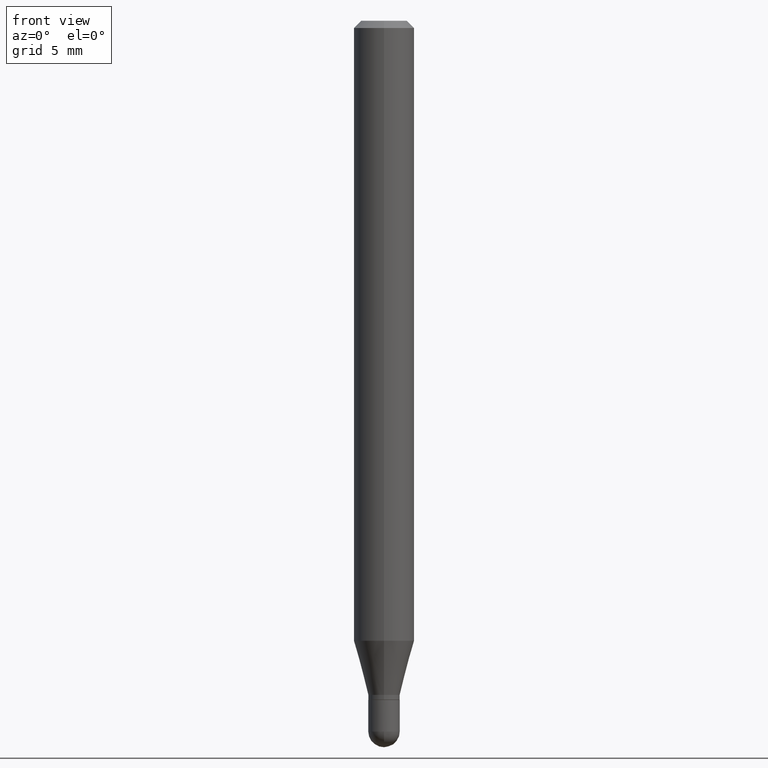
[diagram: clean part render]
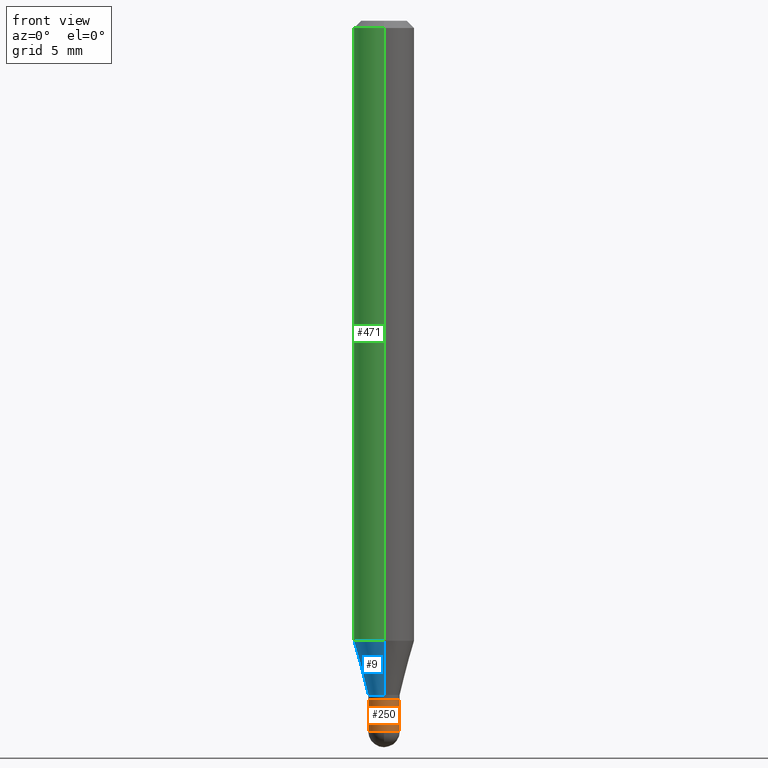
[diagram: same view with three faces highlighted in distinct colors, each labeled with its STEP entity id]
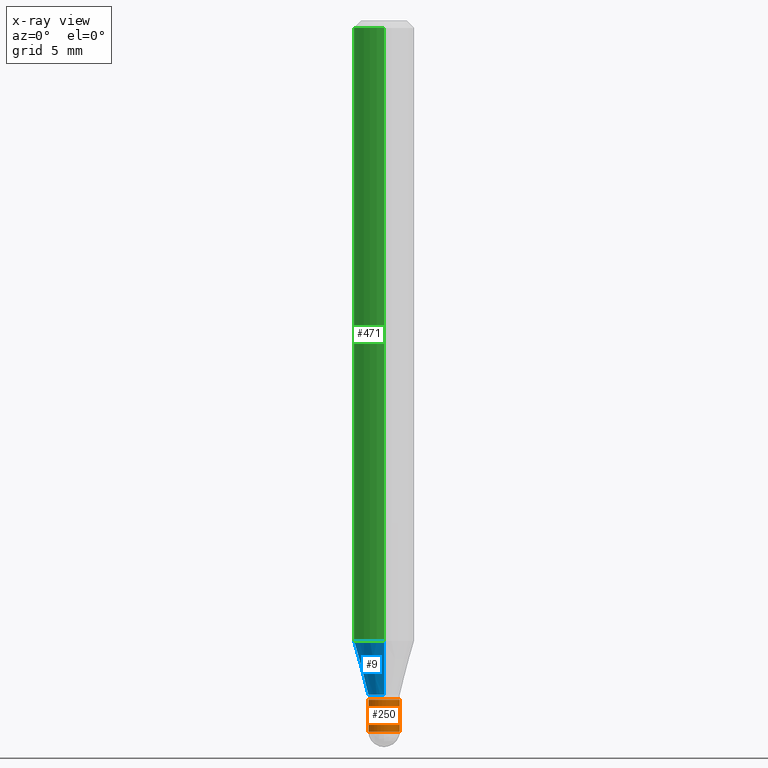
[diagram: x-ray of the same camera — body ghosted, the three highlighted faces saturated]
A machine part, front view with three faces highlighted in distinct colors.
The next image is the same camera in x-ray (body ghosted, the three faces saturated) — at least one of them is partly hidden behind the body in this view.
Their STEP definitions:

[orange] entity #250 — the highlighted cylindrical surface (edge-blend (fillet) strip) has radius 0.8255 mm, axis along (-0, 0, 1).
#28 = CARTESIAN_POINT ( 'NONE',  ( 0.03250000000000000111, -5.122003124082894208E-15, -1.402000000000000135 ) ) ;
#32 = DIRECTION ( 'NONE',  ( -2.445468806185136597E-29, 3.491481338843145583E-15, 1.000000000000000000 ) ) ;
#74 = CYLINDRICAL_SURFACE ( 'NONE', #304, 0.03250000000000000111 ) ;
#75 = AXIS2_PLACEMENT_3D ( 'NONE', #157, #318, #346 ) ;
#80 = ORIENTED_EDGE ( 'NONE', *, *, #228, .F. ) ;
#125 = ORIENTED_EDGE ( 'NONE', *, *, #480, .T. ) ;
#132 = ORIENTED_EDGE ( 'NONE', *, *, #221, .T. ) ;
#146 = CARTESIAN_POINT ( 'NONE',  ( 3.588725473076687933E-29, -5.123748864752316500E-15, -1.467500000000000027 ) ) ;
#157 = CARTESIAN_POINT ( 'NONE',  ( 3.428547266271562329E-29, -4.895056837058090855E-15, -1.402000000000000135 ) ) ;
#160 = ORIENTED_EDGE ( 'NONE', *, *, #301, .F. ) ;
#193 = DIRECTION ( 'NONE',  ( -2.445468806185136597E-29, 3.491481338843145583E-15, 1.000000000000000000 ) ) ;
#202 = CARTESIAN_POINT ( 'NONE',  ( -0.03250000000000000111, -4.778476461783171307E-15, -1.402000000000000135 ) ) ;
#207 = CARTESIAN_POINT ( 'NONE',  ( -0.03250000000000000111, -4.778476461783171307E-15, -1.467500000000000027 ) ) ;
#221 = EDGE_CURVE ( 'NONE', #428, #363, #343, .T. ) ;
#226 = AXIS2_PLACEMENT_3D ( 'NONE', #348, #313, #354 ) ;
#227 = DIRECTION ( 'NONE',  ( -2.445468806185136877E-29, 3.491481338843145188E-15, 1.000000000000000000 ) ) ;
#228 = EDGE_CURVE ( 'NONE', #428, #476, #416, .T. ) ;
#232 = VERTEX_POINT ( 'NONE', #351 ) ;
#245 = VECTOR ( 'NONE', #286, 39.37007874015748143 ) ;
#249 = ORIENTED_EDGE ( 'NONE', *, *, #251, .T. ) ;
#250 = ADVANCED_FACE ( 'NONE', ( #386 ), #74, .T. ) ;
#251 = EDGE_CURVE ( 'NONE', #363, #232, #268, .T. ) ;
#268 = CIRCLE ( 'NONE', #465, 0.03250000000000000111 ) ;
#286 = DIRECTION ( 'NONE',  ( -2.445468806185136877E-29, 3.491481338843145188E-15, 1.000000000000000000 ) ) ;
#289 = VERTEX_POINT ( 'NONE', #28 ) ;
#301 = EDGE_CURVE ( 'NONE', #476, #289, #473, .T. ) ;
#304 = AXIS2_PLACEMENT_3D ( 'NONE', #504, #193, #460 ) ;
#308 = CARTESIAN_POINT ( 'NONE',  ( -2.309263891219966751E-16, -0.03250000000000512895, -1.467500000000000027 ) ) ;
#313 = DIRECTION ( 'NONE',  ( -2.445468806185136597E-29, 3.491481338843145583E-15, 1.000000000000000000 ) ) ;
#316 = VECTOR ( 'NONE', #227, 39.37007874015748143 ) ;
#318 = DIRECTION ( 'NONE',  ( -2.445468806185136597E-29, 3.491481338843145583E-15, 1.000000000000000000 ) ) ;
#343 = CIRCLE ( 'NONE', #226, 0.03250000000000000111 ) ;
#346 = DIRECTION ( 'NONE',  ( 1.000000000000000000, -6.982962677686258033E-15, 0.000000000000000000 ) ) ;
#348 = CARTESIAN_POINT ( 'NONE',  ( 3.588725473076687933E-29, -5.123748864752316500E-15, -1.467500000000000027 ) ) ;
#351 = CARTESIAN_POINT ( 'NONE',  ( 0.03250000000000000111, -5.236349137930007031E-15, -1.467500000000000027 ) ) ;
#354 = DIRECTION ( 'NONE',  ( 1.000000000000000000, -6.982962677686258033E-15, 0.000000000000000000 ) ) ;
#363 = VERTEX_POINT ( 'NONE', #308 ) ;
#386 = FACE_OUTER_BOUND ( 'NONE', #431, .T. ) ;
#397 = CARTESIAN_POINT ( 'NONE',  ( 0.03250000000000000111, -2.269462870248036977E-16, 1.584757452133679343E-30 ) ) ;
#399 = LINE ( 'NONE', #397, #245 ) ;
#416 = LINE ( 'NONE', #503, #316 ) ;
#427 = DIRECTION ( 'NONE',  ( 1.000000000000000000, -6.982962677686258033E-15, 0.000000000000000000 ) ) ;
#428 = VERTEX_POINT ( 'NONE', #207 ) ;
#431 = EDGE_LOOP ( 'NONE', ( #80, #132, #249, #125, #160 ) ) ;
#460 = DIRECTION ( 'NONE',  ( 1.000000000000000000, -6.982962677686267499E-15, 4.876176775795936353E-29 ) ) ;
#465 = AXIS2_PLACEMENT_3D ( 'NONE', #146, #32, #427 ) ;
#473 = CIRCLE ( 'NONE', #75, 0.03250000000000000111 ) ;
#476 = VERTEX_POINT ( 'NONE', #202 ) ;
#480 = EDGE_CURVE ( 'NONE', #232, #289, #399, .T. ) ;
#503 = CARTESIAN_POINT ( 'NONE',  ( -0.03250000000000000111, 2.309263891220325683E-16, -1.598653904332844407E-30 ) ) ;
#504 = CARTESIAN_POINT ( 'NONE',  ( 0.000000000000000000, 0.000000000000000000, 0.000000000000000000 ) ) ;

[blue] entity #9 — the highlighted conical surface has half-angle 15 deg.
#1 = DIRECTION ( 'NONE',  ( -2.445482281465113779E-29, 3.491462041475252887E-15, 1.000000000000000000 ) ) ;
#4 = AXIS2_PLACEMENT_3D ( 'NONE', #311, #274, #387 ) ;
#9 = ADVANCED_FACE ( 'NONE', ( #133 ), #372, .T. ) ;
#30 = ORIENTED_EDGE ( 'NONE', *, *, #453, .T. ) ;
#43 = EDGE_LOOP ( 'NONE', ( #459, #30, #83, #472 ) ) ;
#67 = DIRECTION ( 'NONE',  ( -1.807323732225330139E-15, -0.2588190451025181860, 0.9659258262890689783 ) ) ;
#83 = ORIENTED_EDGE ( 'NONE', *, *, #195, .T. ) ;
#96 = DIRECTION ( 'NONE',  ( -6.982962677686265133E-15, -1.000000000000000000, 0.000000000000000000 ) ) ;
#104 = EDGE_CURVE ( 'NONE', #285, #420, #489, .T. ) ;
#133 = FACE_OUTER_BOUND ( 'NONE', #43, .T. ) ;
#148 = AXIS2_PLACEMENT_3D ( 'NONE', #295, #442, #96 ) ;
#150 = CARTESIAN_POINT ( 'NONE',  ( -4.364351673553605094E-16, -0.06250000000000451028, -1.280038475772934614 ) ) ;
#158 = VECTOR ( 'NONE', #303, 39.37007874015748143 ) ;
#161 = CARTESIAN_POINT ( 'NONE',  ( -2.269462870247710093E-16, -0.03250000000000505956, -1.392000000000000126 ) ) ;
#189 = CARTESIAN_POINT ( 'NONE',  ( -2.269462870247710093E-16, -0.03250000000000505956, -1.392000000000000126 ) ) ;
#195 = EDGE_CURVE ( 'NONE', #418, #273, #421, .T. ) ;
#205 = DIRECTION ( 'NONE',  ( -6.982962677686265133E-15, -1.000000000000000000, 0.000000000000000000 ) ) ;
#217 = VECTOR ( 'NONE', #67, 39.37007874015748143 ) ;
#269 = CARTESIAN_POINT ( 'NONE',  ( 3.375077994860809709E-16, 0.03249999999999533817, -1.392000000000000126 ) ) ;
#273 = VERTEX_POINT ( 'NONE', #150 ) ;
#274 = DIRECTION ( 'NONE',  ( -2.445482281465113779E-29, 3.491462041475252887E-15, 1.000000000000000000 ) ) ;
#285 = VERTEX_POINT ( 'NONE', #269 ) ;
#290 = CARTESIAN_POINT ( 'NONE',  ( 4.440892098500935790E-16, 0.06249999999999548972, -1.280038475772935058 ) ) ;
#295 = CARTESIAN_POINT ( 'NONE',  ( 3.404111335799438775E-29, -4.860115161733551679E-15, -1.392000000000000126 ) ) ;
#296 = CIRCLE ( 'NONE', #474, 0.03250000000000020234 ) ;
#303 = DIRECTION ( 'NONE',  ( 1.839019923739600315E-15, 0.2588190451025249583, 0.9659258262890670910 ) ) ;
#311 = CARTESIAN_POINT ( 'NONE',  ( 3.130311412096322891E-29, -4.469205749789042696E-15, -1.280038475772934836 ) ) ;
#341 = EDGE_CURVE ( 'NONE', #420, #273, #508, .T. ) ;
#372 = CONICAL_SURFACE ( 'NONE', #148, 0.03250000000000020234, 0.2617993877991502960 ) ;
#387 = DIRECTION ( 'NONE',  ( -6.982962677686265922E-15, -1.000000000000000000, 4.370956789862821150E-15 ) ) ;
#408 = CARTESIAN_POINT ( 'NONE',  ( 2.309263891220679684E-16, 0.03249999999999533817, -1.392000000000000126 ) ) ;
#418 = VERTEX_POINT ( 'NONE', #161 ) ;
#420 = VERTEX_POINT ( 'NONE', #290 ) ;
#421 = LINE ( 'NONE', #189, #217 ) ;
#442 = DIRECTION ( 'NONE',  ( -2.445482281465113779E-29, 3.491462041475252887E-15, 1.000000000000000000 ) ) ;
#453 = EDGE_CURVE ( 'NONE', #285, #418, #296, .T. ) ;
#459 = ORIENTED_EDGE ( 'NONE', *, *, #104, .F. ) ;
#470 = CARTESIAN_POINT ( 'NONE',  ( 3.404111335799438775E-29, -4.860115161733551679E-15, -1.392000000000000126 ) ) ;
#472 = ORIENTED_EDGE ( 'NONE', *, *, #341, .F. ) ;
#474 = AXIS2_PLACEMENT_3D ( 'NONE', #470, #1, #205 ) ;
#489 = LINE ( 'NONE', #408, #158 ) ;
#508 = CIRCLE ( 'NONE', #4, 0.06250000000000000000 ) ;

[green] entity #471 — the highlighted cylindrical surface (edge-blend (fillet) strip) has radius 1.5875 mm, axis along (-0, 0, 1).
#4 = AXIS2_PLACEMENT_3D ( 'NONE', #311, #274, #387 ) ;
#11 = ORIENTED_EDGE ( 'NONE', *, *, #197, .F. ) ;
#36 = DIRECTION ( 'NONE',  ( -6.982962677686265922E-15, -1.000000000000000000, 3.483106191921935554E-15 ) ) ;
#40 = DIRECTION ( 'NONE',  ( -2.445482281465113779E-29, 3.491462041475253282E-15, 1.000000000000000000 ) ) ;
#42 = FACE_OUTER_BOUND ( 'NONE', #255, .T. ) ;
#66 = CIRCLE ( 'NONE', #184, 0.06250000000000000000 ) ;
#91 = DIRECTION ( 'NONE',  ( -6.982962677686265922E-15, -1.000000000000000000, 3.491462041475252887E-15 ) ) ;
#111 = DIRECTION ( 'NONE',  ( -2.445482281465113779E-29, 3.491462041475252887E-15, 1.000000000000000000 ) ) ;
#113 = CARTESIAN_POINT ( 'NONE',  ( 4.440892098500940720E-16, 0.06249999999999993755, -0.01500000000000022669 ) ) ;
#116 = VECTOR ( 'NONE', #40, 39.37007874015748143 ) ;
#118 = ORIENTED_EDGE ( 'NONE', *, *, #341, .T. ) ;
#135 = LINE ( 'NONE', #338, #210 ) ;
#150 = CARTESIAN_POINT ( 'NONE',  ( -4.364351673553605094E-16, -0.06250000000000451028, -1.280038475772934614 ) ) ;
#154 = CARTESIAN_POINT ( 'NONE',  ( -4.364351673553912750E-16, -0.06250000000000005551, -0.01499999999999979128 ) ) ;
#155 = EDGE_CURVE ( 'NONE', #273, #389, #135, .T. ) ;
#164 = CARTESIAN_POINT ( 'NONE',  ( 4.440892098500625669E-16, 0.06250000000000000000, -2.182163775922033055E-16 ) ) ;
#184 = AXIS2_PLACEMENT_3D ( 'NONE', #315, #111, #36 ) ;
#197 = EDGE_CURVE ( 'NONE', #239, #389, #66, .T. ) ;
#210 = VECTOR ( 'NONE', #257, 39.37007874015748143 ) ;
#239 = VERTEX_POINT ( 'NONE', #113 ) ;
#255 = EDGE_LOOP ( 'NONE', ( #282, #118, #424, #11 ) ) ;
#257 = DIRECTION ( 'NONE',  ( -2.445482281465113779E-29, 3.491462041475253282E-15, 1.000000000000000000 ) ) ;
#262 = AXIS2_PLACEMENT_3D ( 'NONE', #362, #394, #91 ) ;
#273 = VERTEX_POINT ( 'NONE', #150 ) ;
#274 = DIRECTION ( 'NONE',  ( -2.445482281465113779E-29, 3.491462041475252887E-15, 1.000000000000000000 ) ) ;
#282 = ORIENTED_EDGE ( 'NONE', *, *, #426, .F. ) ;
#290 = CARTESIAN_POINT ( 'NONE',  ( 4.440892098500935790E-16, 0.06249999999999548972, -1.280038475772935058 ) ) ;
#311 = CARTESIAN_POINT ( 'NONE',  ( 3.130311412096322891E-29, -4.469205749789042696E-15, -1.280038475772934836 ) ) ;
#315 = CARTESIAN_POINT ( 'NONE',  ( 3.668223422197672875E-31, -5.237193062212882215E-17, -0.01500000000000000812 ) ) ;
#338 = CARTESIAN_POINT ( 'NONE',  ( -4.364351673553916201E-16, -0.06250000000000000000, 2.182163775922033055E-16 ) ) ;
#341 = EDGE_CURVE ( 'NONE', #420, #273, #508, .T. ) ;
#362 = CARTESIAN_POINT ( 'NONE',  ( 0.000000000000000000, 0.000000000000000000, 0.000000000000000000 ) ) ;
#387 = DIRECTION ( 'NONE',  ( -6.982962677686265922E-15, -1.000000000000000000, 4.370956789862821150E-15 ) ) ;
#389 = VERTEX_POINT ( 'NONE', #154 ) ;
#394 = DIRECTION ( 'NONE',  ( -2.445482281465113779E-29, 3.491462041475252887E-15, 1.000000000000000000 ) ) ;
#420 = VERTEX_POINT ( 'NONE', #290 ) ;
#424 = ORIENTED_EDGE ( 'NONE', *, *, #155, .T. ) ;
#426 = EDGE_CURVE ( 'NONE', #420, #239, #432, .T. ) ;
#432 = LINE ( 'NONE', #164, #116 ) ;
#471 = ADVANCED_FACE ( 'NONE', ( #42 ), #511, .T. ) ;
#508 = CIRCLE ( 'NONE', #4, 0.06250000000000000000 ) ;
#511 = CYLINDRICAL_SURFACE ( 'NONE', #262, 0.06250000000000000000 ) ;